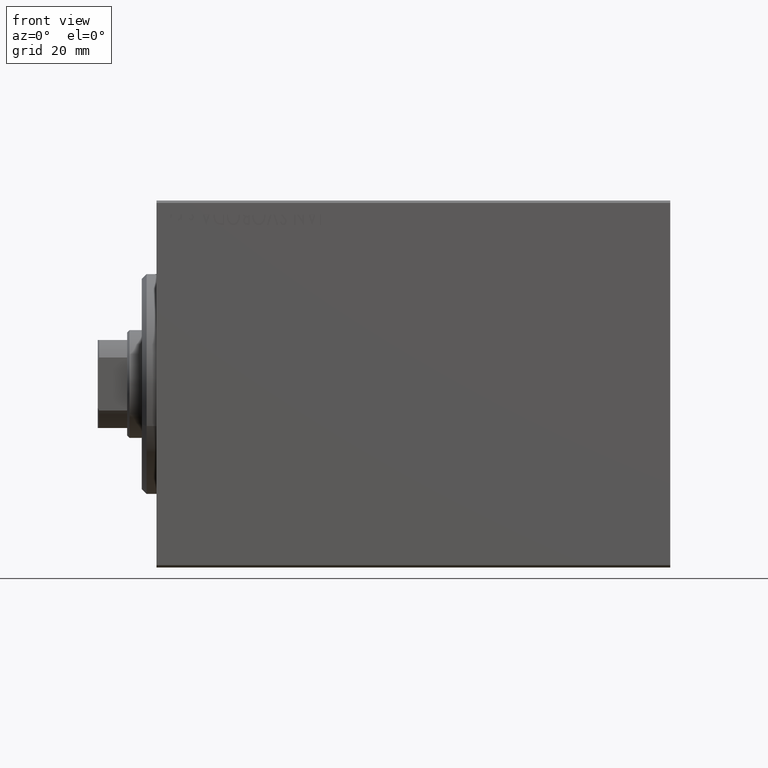
[diagram: clean part render]
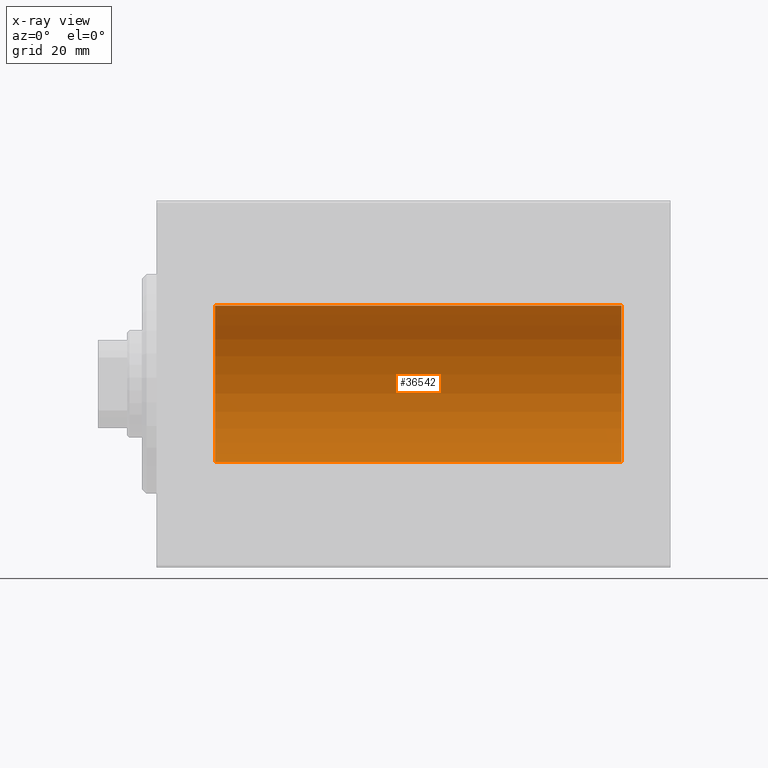
[diagram: x-ray — body ghosted, one internal face saturated and labeled with its STEP entity id]
A machine part, front view, then the same camera in x-ray: the body is ghosted and one INTERNAL B-rep face — a face not visible from any outside direction — is saturated and labeled: STEP entity #36542.
In plain terms, the highlighted cylindrical surface (partial cylindrical patch) has radius 16 mm, axis along (-1, -0, -0).
Its self-contained STEP definition (entity closure, byte-faithful):
#436 = VECTOR ( 'NONE', #1587, 1000.000000000000000 ) ;
#1028 = ORIENTED_EDGE ( 'NONE', *, *, #27450, .F. ) ;
#1054 = VERTEX_POINT ( 'NONE', #4085 ) ;
#1587 = DIRECTION ( 'NONE',  ( -1.000000000000000000, -0.000000000000000000, -0.000000000000000000 ) ) ;
#2027 = CARTESIAN_POINT ( 'NONE',  ( 95.00000000000000000, 0.000000000000000000, 16.00000000000000000 ) ) ;
#2168 = AXIS2_PLACEMENT_3D ( 'NONE', #39448, #8343, #42302 ) ;
#2199 = VERTEX_POINT ( 'NONE', #7768 ) ;
#3052 = DIRECTION ( 'NONE',  ( -1.000000000000000000, -0.000000000000000000, -0.000000000000000000 ) ) ;
#3239 = CARTESIAN_POINT ( 'NONE',  ( 11.99999999999999645, 0.000000000000000000, 0.000000000000000000 ) ) ;
#3550 = LINE ( 'NONE', #40566, #14622 ) ;
#4085 = CARTESIAN_POINT ( 'NONE',  ( 95.00000000000000000, 1.959434878635765131E-15, -16.00000000000000000 ) ) ;
#5099 = LINE ( 'NONE', #2027, #436 ) ;
#6656 = CIRCLE ( 'NONE', #40453, 16.00000000000000000 ) ;
#7768 = CARTESIAN_POINT ( 'NONE',  ( 95.00000000000000000, 0.000000000000000000, 16.00000000000000000 ) ) ;
#7952 = VERTEX_POINT ( 'NONE', #29817 ) ;
#8343 = DIRECTION ( 'NONE',  ( -1.000000000000000000, 0.000000000000000000, 0.000000000000000000 ) ) ;
#10354 = DIRECTION ( 'NONE',  ( -1.000000000000000000, -0.000000000000000000, -0.000000000000000000 ) ) ;
#12005 = EDGE_LOOP ( 'NONE', ( #1028, #26114, #19996, #23518 ) ) ;
#13244 = EDGE_CURVE ( 'NONE', #31383, #7952, #6656, .T. ) ;
#13378 = FACE_OUTER_BOUND ( 'NONE', #12005, .T. ) ;
#14082 = CIRCLE ( 'NONE', #2168, 16.00000000000000000 ) ;
#14622 = VECTOR ( 'NONE', #10354, 1000.000000000000000 ) ;
#17132 = DIRECTION ( 'NONE',  ( 0.000000000000000000, 0.000000000000000000, 1.000000000000000000 ) ) ;
#17644 = EDGE_CURVE ( 'NONE', #2199, #31383, #5099, .T. ) ;
#19996 = ORIENTED_EDGE ( 'NONE', *, *, #17644, .T. ) ;
#20446 = CYLINDRICAL_SURFACE ( 'NONE', #23989, 16.00000000000000000 ) ;
#23516 = DIRECTION ( 'NONE',  ( 0.000000000000000000, 0.000000000000000000, 1.000000000000000000 ) ) ;
#23518 = ORIENTED_EDGE ( 'NONE', *, *, #13244, .T. ) ;
#23973 = CARTESIAN_POINT ( 'NONE',  ( 95.00000000000000000, 0.000000000000000000, 0.000000000000000000 ) ) ;
#23989 = AXIS2_PLACEMENT_3D ( 'NONE', #23973, #3052, #17132 ) ;
#26114 = ORIENTED_EDGE ( 'NONE', *, *, #34336, .F. ) ;
#27450 = EDGE_CURVE ( 'NONE', #1054, #7952, #3550, .T. ) ;
#29817 = CARTESIAN_POINT ( 'NONE',  ( 11.99999999999999645, 1.959434878635765131E-15, -16.00000000000000000 ) ) ;
#31383 = VERTEX_POINT ( 'NONE', #40373 ) ;
#32785 = DIRECTION ( 'NONE',  ( -1.000000000000000000, 0.000000000000000000, 0.000000000000000000 ) ) ;
#34336 = EDGE_CURVE ( 'NONE', #2199, #1054, #14082, .T. ) ;
#36542 = ADVANCED_FACE ( 'NONE', ( #13378 ), #20446, .F. ) ;
#39448 = CARTESIAN_POINT ( 'NONE',  ( 95.00000000000000000, 0.000000000000000000, 0.000000000000000000 ) ) ;
#40373 = CARTESIAN_POINT ( 'NONE',  ( 11.99999999999999645, 0.000000000000000000, 16.00000000000000000 ) ) ;
#40453 = AXIS2_PLACEMENT_3D ( 'NONE', #3239, #32785, #23516 ) ;
#40566 = CARTESIAN_POINT ( 'NONE',  ( 95.00000000000000000, 1.959434878635765131E-15, -16.00000000000000000 ) ) ;
#42302 = DIRECTION ( 'NONE',  ( 0.000000000000000000, 0.000000000000000000, 1.000000000000000000 ) ) ;